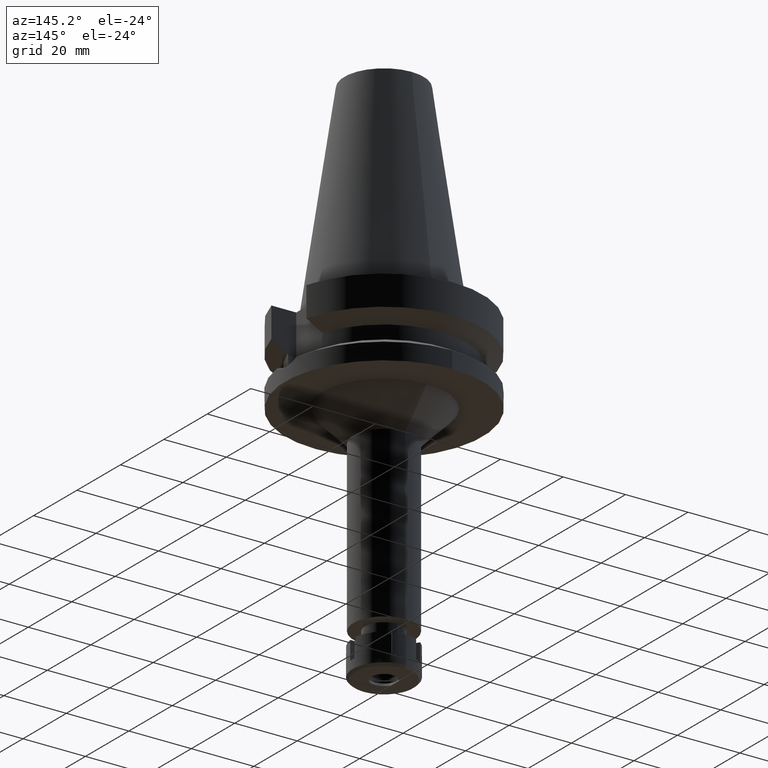
[diagram: clean part render]
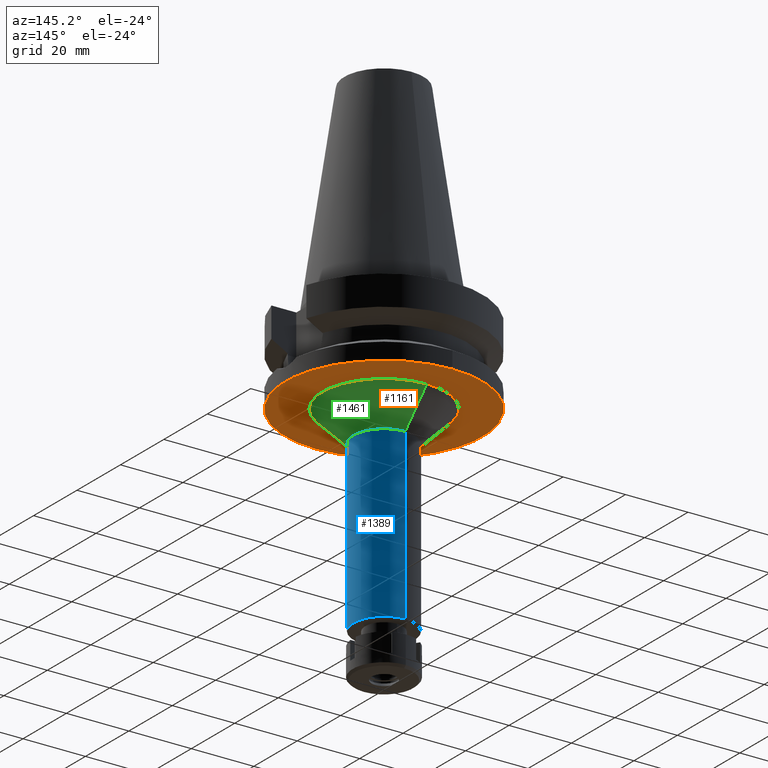
[diagram: same view with three faces highlighted in distinct colors, each labeled with its STEP entity id]
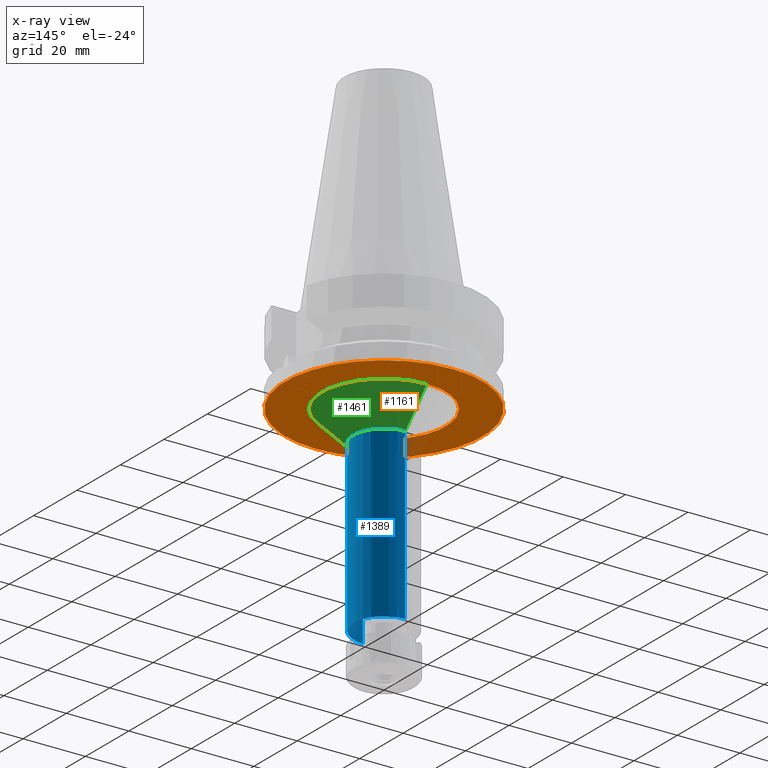
[diagram: x-ray of the same camera — body ghosted, the three highlighted faces saturated]
A machine part, auxiliary view with three faces highlighted in distinct colors.
The next image is the same camera in x-ray (body ghosted, the three faces saturated) — at least one of them is partly hidden behind the body in this view.
Their STEP definitions:

[orange] entity #1161 — the highlighted planar face has unit normal (0, 0, -1).
#147 = CARTESIAN_POINT ( 'NONE',  ( 0.0000000000000000000, 2.126844096079000037E-14, -27.00000000000000000 ) ) ;
#218 = FACE_BOUND ( 'NONE', #1615, .T. ) ;
#271 = EDGE_CURVE ( 'NONE', #2092, #2127, #995, .T. ) ;
#419 = ORIENTED_EDGE ( 'NONE', *, *, #1088, .F. ) ;
#520 = CIRCLE ( 'NONE', #695, 19.75000000000000000 ) ;
#527 = DIRECTION ( 'NONE',  ( 0.0000000000000000000, 0.0000000000000000000, -1.000000000000000000 ) ) ;
#570 = CARTESIAN_POINT ( 'NONE',  ( 0.0000000000000000000, -19.75000000000000000, -27.00000000000000000 ) ) ;
#673 = DIRECTION ( 'NONE',  ( 0.0000000000000000000, 0.0000000000000000000, 1.000000000000000000 ) ) ;
#695 = AXIS2_PLACEMENT_3D ( 'NONE', #3058, #527, #2776 ) ;
#751 = CARTESIAN_POINT ( 'NONE',  ( 0.0000000000000000000, 0.0000000000000000000, -27.00000000000000000 ) ) ;
#825 = AXIS2_PLACEMENT_3D ( 'NONE', #1751, #673, #1512 ) ;
#848 = DIRECTION ( 'NONE',  ( 0.0000000000000000000, 1.000000000000000000, 0.0000000000000000000 ) ) ;
#915 = EDGE_CURVE ( 'NONE', #2127, #2092, #520, .T. ) ;
#961 = DIRECTION ( 'NONE',  ( 0.0000000000000000000, 1.000000000000000000, 0.0000000000000000000 ) ) ;
#995 = CIRCLE ( 'NONE', #2701, 19.75000000000000000 ) ;
#1041 = FACE_OUTER_BOUND ( 'NONE', #1511, .T. ) ;
#1088 = EDGE_CURVE ( 'NONE', #3336, #2604, #1708, .T. ) ;
#1161 = ADVANCED_FACE ( 'NONE', ( #1041, #218 ), #1893, .T. ) ;
#1177 = AXIS2_PLACEMENT_3D ( 'NONE', #147, #1967, #848 ) ;
#1511 = EDGE_LOOP ( 'NONE', ( #419, #1853 ) ) ;
#1512 = DIRECTION ( 'NONE',  ( 0.0000000000000000000, -1.000000000000000000, 0.0000000000000000000 ) ) ;
#1577 = CARTESIAN_POINT ( 'NONE',  ( 0.0000000000000000000, 0.0000000000000000000, -27.00000000000000000 ) ) ;
#1594 = DIRECTION ( 'NONE',  ( 0.0000000000000000000, 0.0000000000000000000, -1.000000000000000000 ) ) ;
#1615 = EDGE_LOOP ( 'NONE', ( #2713, #1927 ) ) ;
#1708 = CIRCLE ( 'NONE', #1177, 31.50000000000000000 ) ;
#1751 = CARTESIAN_POINT ( 'NONE',  ( 0.0000000000000000000, 2.126844096079000037E-14, -27.00000000000000000 ) ) ;
#1814 = EDGE_CURVE ( 'NONE', #2604, #3336, #2293, .T. ) ;
#1853 = ORIENTED_EDGE ( 'NONE', *, *, #1814, .F. ) ;
#1893 = PLANE ( 'NONE',  #3532 ) ;
#1927 = ORIENTED_EDGE ( 'NONE', *, *, #915, .F. ) ;
#1967 = DIRECTION ( 'NONE',  ( 0.0000000000000000000, 0.0000000000000000000, 1.000000000000000000 ) ) ;
#2092 = VERTEX_POINT ( 'NONE', #2449 ) ;
#2127 = VERTEX_POINT ( 'NONE', #570 ) ;
#2205 = CARTESIAN_POINT ( 'NONE',  ( 0.0000000000000000000, -31.50000000000000000, -27.00000000000000000 ) ) ;
#2293 = CIRCLE ( 'NONE', #825, 31.50000000000000000 ) ;
#2449 = CARTESIAN_POINT ( 'NONE',  ( 0.0000000000000000000, 19.75000000000000000, -27.00000000000000000 ) ) ;
#2604 = VERTEX_POINT ( 'NONE', #2205 ) ;
#2614 = CARTESIAN_POINT ( 'NONE',  ( 0.0000000000000000000, 31.50000000000000000, -27.00000000000000000 ) ) ;
#2701 = AXIS2_PLACEMENT_3D ( 'NONE', #751, #1594, #961 ) ;
#2713 = ORIENTED_EDGE ( 'NONE', *, *, #271, .F. ) ;
#2776 = DIRECTION ( 'NONE',  ( 0.0000000000000000000, -1.000000000000000000, 0.0000000000000000000 ) ) ;
#2985 = DIRECTION ( 'NONE',  ( 0.0000000000000000000, -1.000000000000000000, 0.0000000000000000000 ) ) ;
#3058 = CARTESIAN_POINT ( 'NONE',  ( 0.0000000000000000000, 0.0000000000000000000, -27.00000000000000000 ) ) ;
#3258 = DIRECTION ( 'NONE',  ( 0.0000000000000000000, 0.0000000000000000000, -1.000000000000000000 ) ) ;
#3336 = VERTEX_POINT ( 'NONE', #2614 ) ;
#3532 = AXIS2_PLACEMENT_3D ( 'NONE', #1577, #3258, #2985 ) ;

[blue] entity #1389 — the highlighted cylindrical surface (partial cylindrical patch) has radius 9.75 mm, axis along (0, 0, -1).
#21 = CYLINDRICAL_SURFACE ( 'NONE', #3180, 9.750000000000000000 ) ;
#83 = CARTESIAN_POINT ( 'NONE',  ( 0.0000000000000000000, -9.750000000000000000, -37.00000000000000000 ) ) ;
#182 = AXIS2_PLACEMENT_3D ( 'NONE', #1124, #802, #3331 ) ;
#195 = CARTESIAN_POINT ( 'NONE',  ( 0.0000000000000000000, 2.126844096079000037E-14, -91.00000000000000000 ) ) ;
#440 = VERTEX_POINT ( 'NONE', #980 ) ;
#680 = CARTESIAN_POINT ( 'NONE',  ( 0.0000000000000000000, 9.750000000000000000, -37.00000000000000000 ) ) ;
#779 = CIRCLE ( 'NONE', #1264, 9.750000000000000000 ) ;
#802 = DIRECTION ( 'NONE',  ( 0.0000000000000000000, 0.0000000000000000000, -1.000000000000000000 ) ) ;
#836 = DIRECTION ( 'NONE',  ( 0.0000000000000000000, -1.000000000000000000, 0.0000000000000000000 ) ) ;
#839 = EDGE_CURVE ( 'NONE', #440, #2390, #3351, .T. ) ;
#980 = CARTESIAN_POINT ( 'NONE',  ( 0.0000000000000000000, 9.750000000000000000, -37.00000000000000000 ) ) ;
#1002 = DIRECTION ( 'NONE',  ( 0.0000000000000000000, 0.0000000000000000000, -1.000000000000000000 ) ) ;
#1038 = LINE ( 'NONE', #680, #1365 ) ;
#1075 = ORIENTED_EDGE ( 'NONE', *, *, #2962, .T. ) ;
#1124 = CARTESIAN_POINT ( 'NONE',  ( 0.0000000000000000000, 0.0000000000000000000, -37.00000000000000000 ) ) ;
#1133 = CARTESIAN_POINT ( 'NONE',  ( 0.0000000000000000000, 2.126844096079000037E-14, 73.67000000000000171 ) ) ;
#1191 = DIRECTION ( 'NONE',  ( 0.0000000000000000000, 0.0000000000000000000, -1.000000000000000000 ) ) ;
#1264 = AXIS2_PLACEMENT_3D ( 'NONE', #195, #2377, #2673 ) ;
#1365 = VECTOR ( 'NONE', #1002, 1000.000000000000000 ) ;
#1389 = ADVANCED_FACE ( 'NONE', ( #3624 ), #21, .T. ) ;
#1452 = EDGE_LOOP ( 'NONE', ( #1490, #1075, #2764, #2969 ) ) ;
#1490 = ORIENTED_EDGE ( 'NONE', *, *, #839, .T. ) ;
#1865 = CARTESIAN_POINT ( 'NONE',  ( 0.0000000000000000000, -9.750000000000000000, -91.00000000000000000 ) ) ;
#2294 = CARTESIAN_POINT ( 'NONE',  ( 0.0000000000000000000, -9.750000000000000000, -37.00000000000000000 ) ) ;
#2341 = CARTESIAN_POINT ( 'NONE',  ( 0.0000000000000000000, 9.750000000000000000, -91.00000000000000000 ) ) ;
#2377 = DIRECTION ( 'NONE',  ( 0.0000000000000000000, 0.0000000000000000000, 1.000000000000000000 ) ) ;
#2390 = VERTEX_POINT ( 'NONE', #2294 ) ;
#2600 = LINE ( 'NONE', #83, #3125 ) ;
#2673 = DIRECTION ( 'NONE',  ( 0.0000000000000000000, -1.000000000000000000, 0.0000000000000000000 ) ) ;
#2764 = ORIENTED_EDGE ( 'NONE', *, *, #3600, .T. ) ;
#2933 = VERTEX_POINT ( 'NONE', #2341 ) ;
#2962 = EDGE_CURVE ( 'NONE', #2390, #3162, #2600, .T. ) ;
#2969 = ORIENTED_EDGE ( 'NONE', *, *, #3051, .F. ) ;
#3051 = EDGE_CURVE ( 'NONE', #440, #2933, #1038, .T. ) ;
#3125 = VECTOR ( 'NONE', #1191, 1000.000000000000000 ) ;
#3162 = VERTEX_POINT ( 'NONE', #1865 ) ;
#3180 = AXIS2_PLACEMENT_3D ( 'NONE', #1133, #3382, #836 ) ;
#3331 = DIRECTION ( 'NONE',  ( 0.0000000000000000000, 1.000000000000000000, 0.0000000000000000000 ) ) ;
#3351 = CIRCLE ( 'NONE', #182, 9.750000000000000000 ) ;
#3382 = DIRECTION ( 'NONE',  ( 0.0000000000000000000, 0.0000000000000000000, -1.000000000000000000 ) ) ;
#3600 = EDGE_CURVE ( 'NONE', #3162, #2933, #779, .T. ) ;
#3624 = FACE_OUTER_BOUND ( 'NONE', #1452, .T. ) ;

[green] entity #1461 — the highlighted conical surface has half-angle 45 deg.
#59 = DIRECTION ( 'NONE',  ( 0.0000000000000000000, 0.0000000000000000000, 1.000000000000000000 ) ) ;
#182 = AXIS2_PLACEMENT_3D ( 'NONE', #1124, #802, #3331 ) ;
#271 = EDGE_CURVE ( 'NONE', #2092, #2127, #995, .T. ) ;
#312 = EDGE_LOOP ( 'NONE', ( #3186, #1886, #606, #3494 ) ) ;
#440 = VERTEX_POINT ( 'NONE', #980 ) ;
#570 = CARTESIAN_POINT ( 'NONE',  ( 0.0000000000000000000, -19.75000000000000000, -27.00000000000000000 ) ) ;
#574 = AXIS2_PLACEMENT_3D ( 'NONE', #2046, #59, #1451 ) ;
#606 = ORIENTED_EDGE ( 'NONE', *, *, #839, .F. ) ;
#751 = CARTESIAN_POINT ( 'NONE',  ( 0.0000000000000000000, 0.0000000000000000000, -27.00000000000000000 ) ) ;
#802 = DIRECTION ( 'NONE',  ( 0.0000000000000000000, 0.0000000000000000000, -1.000000000000000000 ) ) ;
#839 = EDGE_CURVE ( 'NONE', #440, #2390, #3351, .T. ) ;
#961 = DIRECTION ( 'NONE',  ( 0.0000000000000000000, 1.000000000000000000, 0.0000000000000000000 ) ) ;
#980 = CARTESIAN_POINT ( 'NONE',  ( 0.0000000000000000000, 9.750000000000000000, -37.00000000000000000 ) ) ;
#995 = CIRCLE ( 'NONE', #2701, 19.75000000000000000 ) ;
#1124 = CARTESIAN_POINT ( 'NONE',  ( 0.0000000000000000000, 0.0000000000000000000, -37.00000000000000000 ) ) ;
#1213 = EDGE_CURVE ( 'NONE', #2127, #2390, #2406, .T. ) ;
#1262 = VECTOR ( 'NONE', #2302, 1000.000000000000114 ) ;
#1359 = CONICAL_SURFACE ( 'NONE', #574, 14.75000000000000000, 0.7853981633972997312 ) ;
#1451 = DIRECTION ( 'NONE',  ( 0.0000000000000000000, 1.000000000000000000, 0.0000000000000000000 ) ) ;
#1461 = ADVANCED_FACE ( 'NONE', ( #2288 ), #1359, .T. ) ;
#1464 = LINE ( 'NONE', #2579, #1262 ) ;
#1594 = DIRECTION ( 'NONE',  ( 0.0000000000000000000, 0.0000000000000000000, -1.000000000000000000 ) ) ;
#1881 = VECTOR ( 'NONE', #3529, 1000.000000000000114 ) ;
#1886 = ORIENTED_EDGE ( 'NONE', *, *, #1213, .T. ) ;
#2046 = CARTESIAN_POINT ( 'NONE',  ( 0.0000000000000000000, 0.0000000000000000000, -32.00000000000000000 ) ) ;
#2092 = VERTEX_POINT ( 'NONE', #2449 ) ;
#2127 = VERTEX_POINT ( 'NONE', #570 ) ;
#2288 = FACE_OUTER_BOUND ( 'NONE', #312, .T. ) ;
#2294 = CARTESIAN_POINT ( 'NONE',  ( 0.0000000000000000000, -9.750000000000000000, -37.00000000000000000 ) ) ;
#2302 = DIRECTION ( 'NONE',  ( 0.0000000000000000000, -0.7071067811865474617, -0.7071067811865474617 ) ) ;
#2390 = VERTEX_POINT ( 'NONE', #2294 ) ;
#2406 = LINE ( 'NONE', #2445, #1881 ) ;
#2445 = CARTESIAN_POINT ( 'NONE',  ( 0.0000000000000000000, -19.75000000000000000, -27.00000000000000000 ) ) ;
#2449 = CARTESIAN_POINT ( 'NONE',  ( 0.0000000000000000000, 19.75000000000000000, -27.00000000000000000 ) ) ;
#2579 = CARTESIAN_POINT ( 'NONE',  ( 0.0000000000000000000, 19.75000000000000000, -27.00000000000000000 ) ) ;
#2701 = AXIS2_PLACEMENT_3D ( 'NONE', #751, #1594, #961 ) ;
#3186 = ORIENTED_EDGE ( 'NONE', *, *, #271, .T. ) ;
#3331 = DIRECTION ( 'NONE',  ( 0.0000000000000000000, 1.000000000000000000, 0.0000000000000000000 ) ) ;
#3351 = CIRCLE ( 'NONE', #182, 9.750000000000000000 ) ;
#3494 = ORIENTED_EDGE ( 'NONE', *, *, #3502, .F. ) ;
#3502 = EDGE_CURVE ( 'NONE', #2092, #440, #1464, .T. ) ;
#3529 = DIRECTION ( 'NONE',  ( 0.0000000000000000000, 0.7071067811865474617, -0.7071067811865474617 ) ) ;